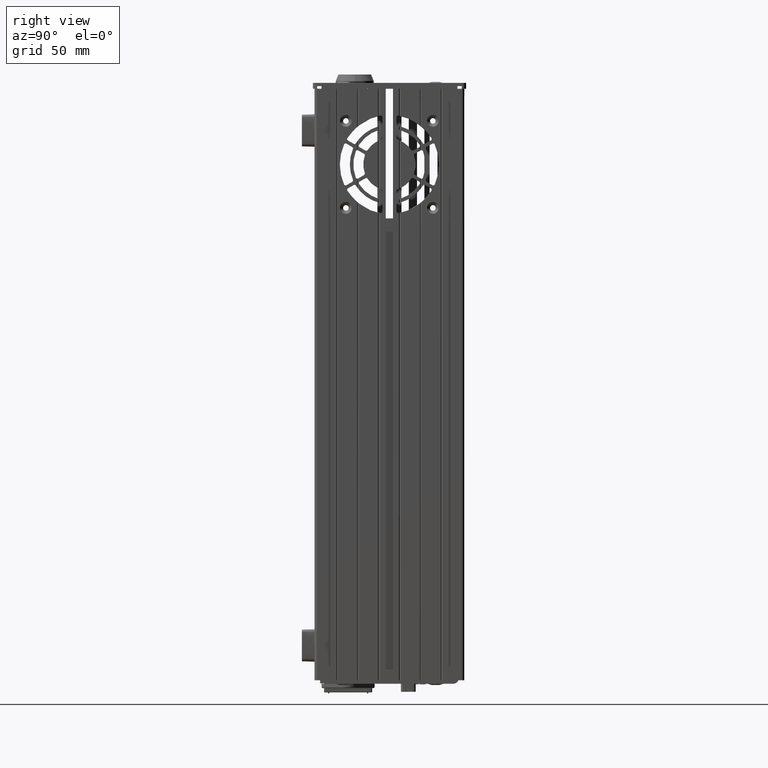
[diagram: clean part render]
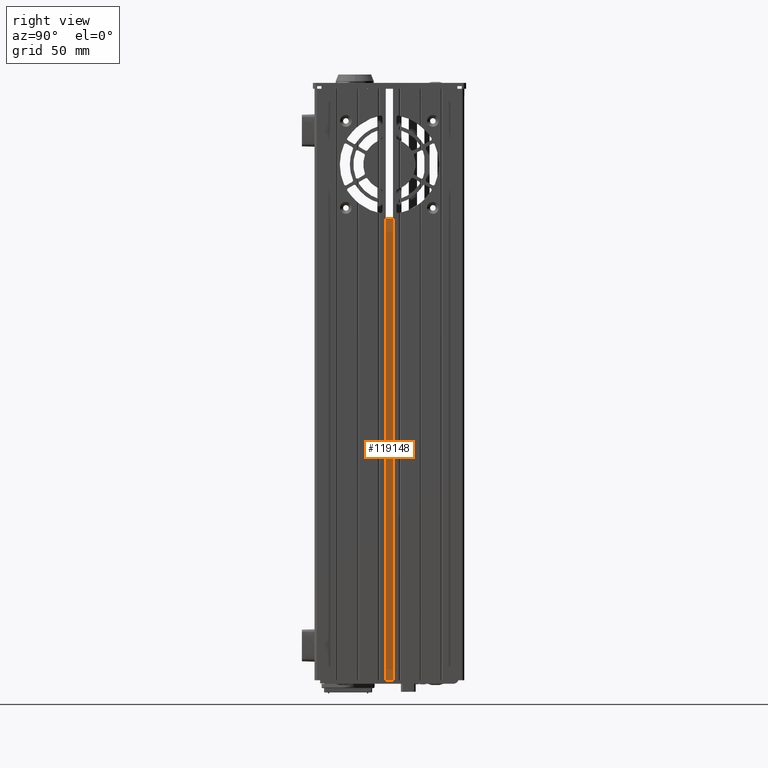
[diagram: same view with one face highlighted and labeled with its STEP entity id]
A machine part, right view. The second image highlights one B-rep face of the part: STEP entity #119148.
In plain terms, the highlighted planar face has unit normal (-1, 0, 0).
Its self-contained STEP definition (entity closure, byte-faithful):
#7475 = EDGE_CURVE ( 'NONE', #67407, #53040, #109241, .T. ) ;
#7623 = LINE ( 'NONE', #13708, #55331 ) ;
#11087 = EDGE_CURVE ( 'NONE', #67407, #131249, #104171, .T. ) ;
#13708 = CARTESIAN_POINT ( 'NONE',  ( 198.0978556100000400, 46.12000000000001200, -340.0000000000000000 ) ) ;
#13870 = EDGE_CURVE ( 'NONE', #53040, #103338, #7623, .T. ) ;
#18931 = ORIENTED_EDGE ( 'NONE', *, *, #125437, .T. ) ;
#29261 = LINE ( 'NONE', #116738, #73749 ) ;
#31589 = PLANE ( 'NONE',  #78445 ) ;
#41619 = ORIENTED_EDGE ( 'NONE', *, *, #7475, .T. ) ;
#41788 = DIRECTION ( 'NONE',  ( 2.065146995210486900E-016, 1.000000000000000000, 0.0000000000000000000 ) ) ;
#50752 = DIRECTION ( 'NONE',  ( 0.0000000000000000000, 0.0000000000000000000, 1.000000000000000000 ) ) ;
#53040 = VERTEX_POINT ( 'NONE', #117569 ) ;
#54082 = DIRECTION ( 'NONE',  ( 2.065146995210486900E-016, 1.000000000000000000, 0.0000000000000000000 ) ) ;
#55331 = VECTOR ( 'NONE', #93706, 1000.000000000000000 ) ;
#65638 = EDGE_LOOP ( 'NONE', ( #79993, #18931, #80349, #41619 ) ) ;
#66453 = DIRECTION ( 'NONE',  ( -2.065146995210487200E-016, -1.000000000000000000, 0.0000000000000000000 ) ) ;
#67407 = VERTEX_POINT ( 'NONE', #114674 ) ;
#73749 = VECTOR ( 'NONE', #66453, 1000.000000000000000 ) ;
#78445 = AXIS2_PLACEMENT_3D ( 'NONE', #102699, #102259, #41788 ) ;
#79993 = ORIENTED_EDGE ( 'NONE', *, *, #13870, .T. ) ;
#80349 = ORIENTED_EDGE ( 'NONE', *, *, #11087, .F. ) ;
#81321 = CARTESIAN_POINT ( 'NONE',  ( 198.0978556100000400, 41.92000000000001600, -340.0000000000000000 ) ) ;
#93706 = DIRECTION ( 'NONE',  ( 0.0000000000000000000, 0.0000000000000000000, 1.000000000000000000 ) ) ;
#102259 = DIRECTION ( 'NONE',  ( -1.000000000000000000, 2.065146995210486900E-016, 0.0000000000000000000 ) ) ;
#102699 = CARTESIAN_POINT ( 'NONE',  ( 198.0978556100000400, 46.12000000000001200, -340.0000000000000000 ) ) ;
#103338 = VERTEX_POINT ( 'NONE', #106443 ) ;
#104171 = LINE ( 'NONE', #81321, #126581 ) ;
#106443 = CARTESIAN_POINT ( 'NONE',  ( 198.0978556100000400, 46.12000000000001200, -74.50000000000001400 ) ) ;
#109241 = LINE ( 'NONE', #114092, #123560 ) ;
#114092 = CARTESIAN_POINT ( 'NONE',  ( 198.0978556100000400, 46.12000000000001200, -340.0000000000000000 ) ) ;
#114674 = CARTESIAN_POINT ( 'NONE',  ( 198.0978556100000400, 41.92000000000001600, -340.0000000000000000 ) ) ;
#116738 = CARTESIAN_POINT ( 'NONE',  ( 198.0978556100000400, 46.12000000000001200, -74.50000000000001400 ) ) ;
#117569 = CARTESIAN_POINT ( 'NONE',  ( 198.0978556100000400, 46.12000000000001200, -340.0000000000000000 ) ) ;
#119148 = ADVANCED_FACE ( 'NONE', ( #125216 ), #31589, .F. ) ;
#123560 = VECTOR ( 'NONE', #54082, 1000.000000000000000 ) ;
#125216 = FACE_OUTER_BOUND ( 'NONE', #65638, .T. ) ;
#125437 = EDGE_CURVE ( 'NONE', #103338, #131249, #29261, .T. ) ;
#126581 = VECTOR ( 'NONE', #50752, 1000.000000000000000 ) ;
#127725 = CARTESIAN_POINT ( 'NONE',  ( 198.0978556100000400, 41.92000000000001600, -74.50000000000001400 ) ) ;
#131249 = VERTEX_POINT ( 'NONE', #127725 ) ;